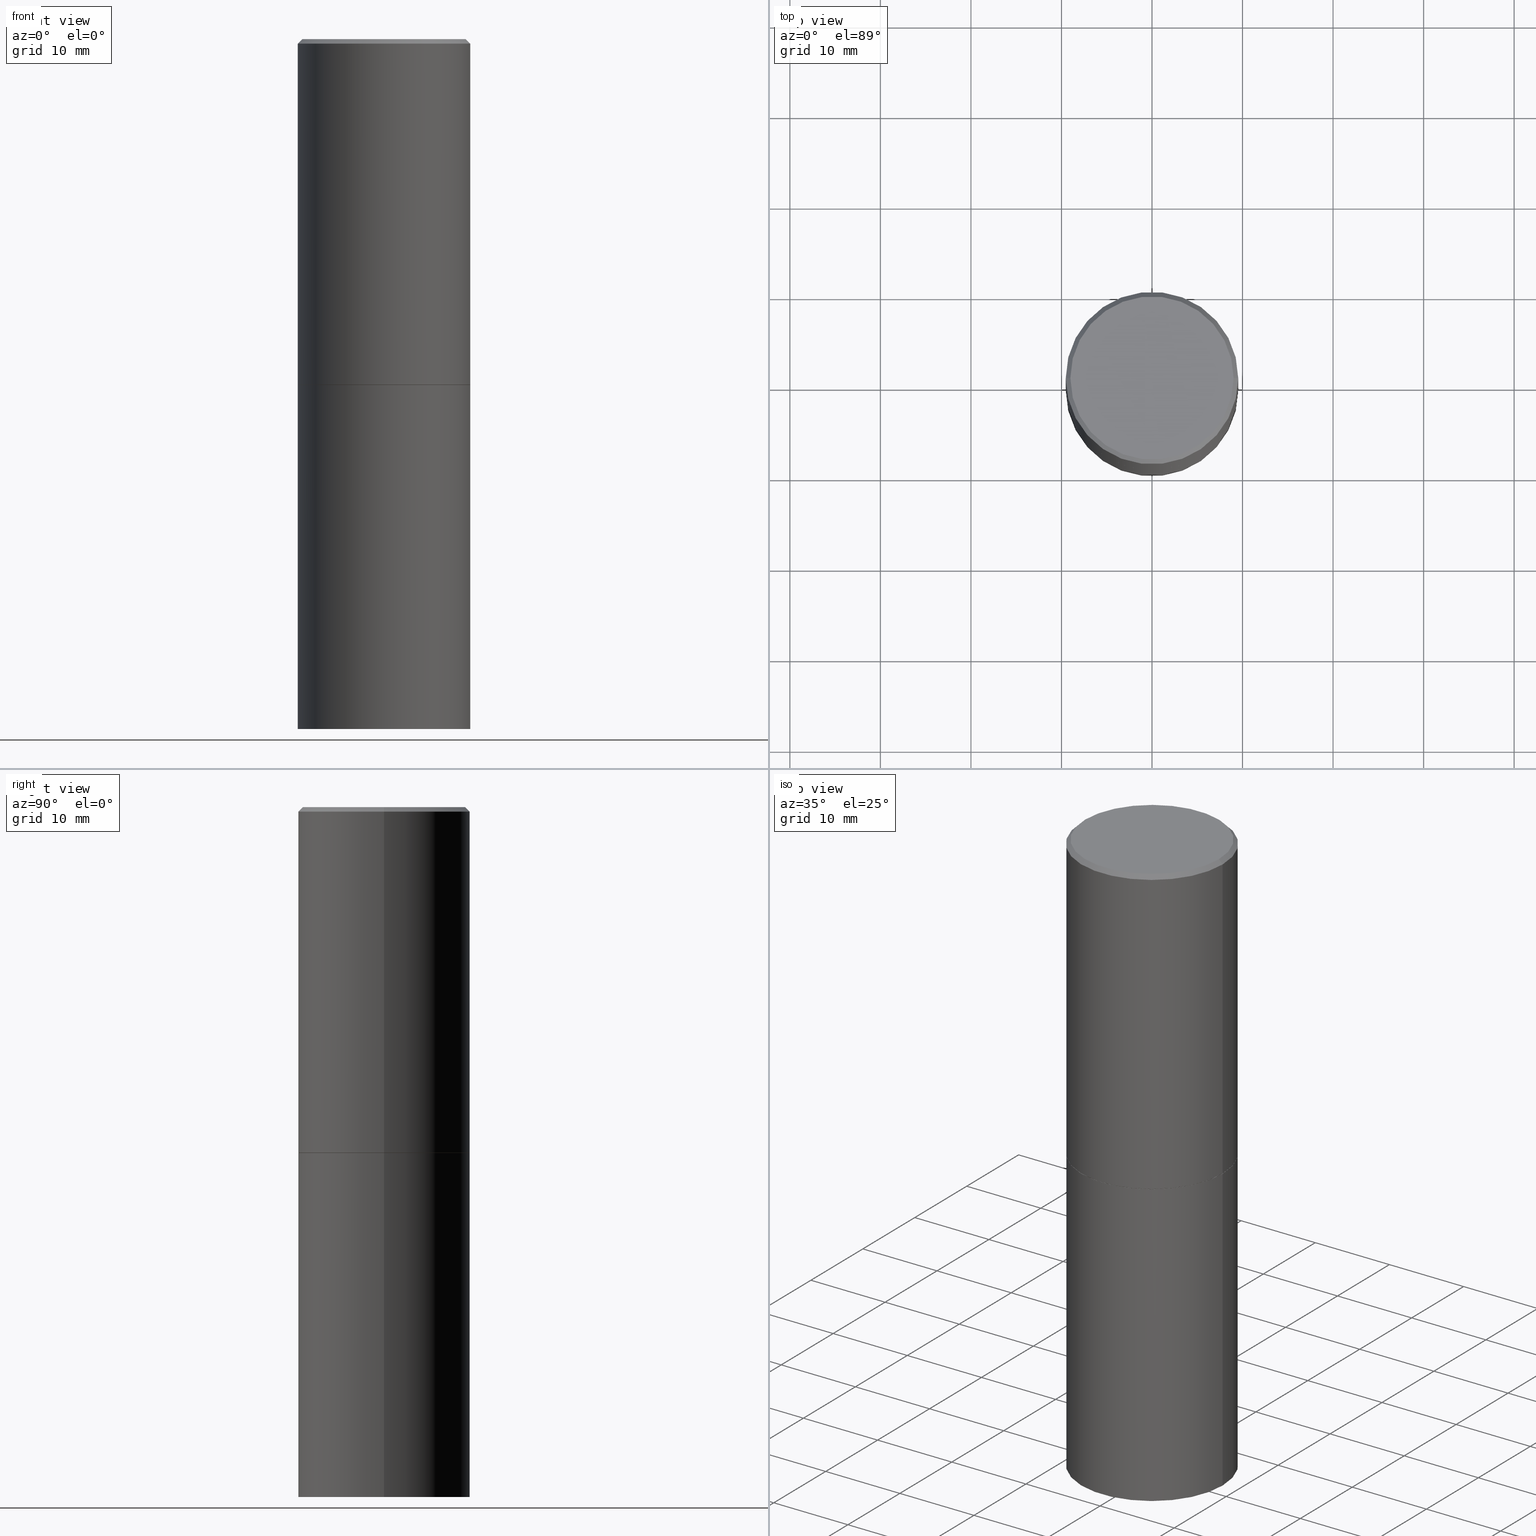
[diagram: canonical four-view strip — front | top / right | iso, engineering-drawing reading convention]
A machine part, canonical four-view strip (front | top / right | iso — engineering-drawing reading convention). The complete STEP part file that produces these views, byte-faithful:
ISO-10303-21;
HEADER;
FILE_DESCRIPTION (( 'STEP AP203' ),
    '1' );
FILE_NAME ('32682.STEP',
    '2022-04-27T15:47:13',
    ( '' ),
    ( '' ),
    'SwSTEP 2.0',
    'SolidWorks 2022',
    '' );
FILE_SCHEMA (( 'CONFIG_CONTROL_DESIGN' ));
ENDSEC;

DATA;
#1 = FACE_OUTER_BOUND ( 'NONE', #39, .T. ) ;
#2 = AXIS2_PLACEMENT_3D ( 'NONE', #12, #284, #256 ) ;
#3 = PRODUCT_RELATED_PRODUCT_CATEGORY ( 'detail', '', ( #66 ) ) ;
#4 = DIRECTION ( 'NONE',  ( -2.445468806185136597E-29, 3.491481338843145583E-15, 1.000000000000000000 ) ) ;
#5 = CALENDAR_DATE ( 2022, 27, 4 ) ;
#6 = DIRECTION ( 'NONE',  ( 1.000000000000000000, -6.982962677686266711E-15, 4.876176775795935793E-29 ) ) ;
#7 = VECTOR ( 'NONE', #297, 39.37007874015748143 ) ;
#8 = VERTEX_POINT ( 'NONE', #231 ) ;
#9 = EDGE_LOOP ( 'NONE', ( #262, #258, #325, #260 ) ) ;
#10 = DIRECTION ( 'NONE',  ( 1.000000000000000000, -6.982962677686266711E-15, 4.876176775795935793E-29 ) ) ;
#11 = PERSON_AND_ORGANIZATION ( #261, #51 ) ;
#12 = CARTESIAN_POINT ( 'NONE',  ( 2.618611004132387093E-15, 0.3749999999999947820, -1.503900000000001791 ) ) ;
#13 = AXIS2_PLACEMENT_3D ( 'NONE', #34, #295, #362 ) ;
#14 = LINE ( 'NONE', #278, #209 ) ;
#15 = DESIGN_CONTEXT ( 'detailed design', #351, 'design' ) ;
#16 = CARTESIAN_POINT ( 'NONE',  ( 0.000000000000000000, 0.000000000000000000, 0.000000000000000000 ) ) ;
#17 = LINE ( 'NONE', #343, #252 ) ;
#18 = CONICAL_SURFACE ( 'NONE', #37, 0.3739999999999999991, 0.7853981633974141952 ) ;
#19 = CC_DESIGN_APPROVAL ( #337, ( #221 ) ) ;
#20 = PERSON_AND_ORGANIZATION ( #261, #51 ) ;
#21 = DIRECTION ( 'NONE',  ( -2.445468806185136597E-29, 3.491481338843145583E-15, 1.000000000000000000 ) ) ;
#22 = ORIENTED_EDGE ( 'NONE', *, *, #144, .F. ) ;
#23 = ORIENTED_EDGE ( 'NONE', *, *, #108, .T. ) ;
#24 = CIRCLE ( 'NONE', #64, 0.3749999999999998335 ) ;
#25 = DIRECTION ( 'NONE',  ( -0.7071067811865467956, 2.468850131082249172E-15, -0.7071067811865482389 ) ) ;
#26 = ORIENTED_EDGE ( 'NONE', *, *, #350, .T. ) ;
#27 = DIRECTION ( 'NONE',  ( 1.000000000000000000, -6.982962677686266711E-15, 0.000000000000000000 ) ) ;
#28 = PRODUCT_DEFINITION ( 'UNKNOWN', '', #221, #15 ) ;
#29 = CARTESIAN_POINT ( 'NONE',  ( -0.3739999999999999991, -2.593408953743432793E-15, -1.503900000000000237 ) ) ;
#30 = FACE_OUTER_BOUND ( 'NONE', #344, .T. ) ;
#31 = CIRCLE ( 'NONE', #276, 0.3749999999999998335 ) ;
#32 = CC_DESIGN_SECURITY_CLASSIFICATION ( #124, ( #221 ) ) ;
#33 = CYLINDRICAL_SURFACE ( 'NONE', #327, 0.3749999999999999445 ) ;
#34 = CARTESIAN_POINT ( 'NONE',  ( -1.043851414335219820E-46, 1.490343170380447200E-32, 4.268512490100411279E-18 ) ) ;
#35 = CARTESIAN_POINT ( 'NONE',  ( 0.3750000000000019984, -1.304713076569377647E-14, -3.000000000000000444 ) ) ;
#36 = PERSON_AND_ORGANIZATION ( #261, #51 ) ;
#37 = AXIS2_PLACEMENT_3D ( 'NONE', #42, #101, #167 ) ;
#38 = DIRECTION ( 'NONE',  ( 1.000000000000000000, -6.982962677686266711E-15, 0.000000000000000000 ) ) ;
#39 = EDGE_LOOP ( 'NONE', ( #250, #225, #384 ) ) ;
#40 = DIRECTION ( 'NONE',  ( 1.000000000000000000, -6.982962677686265922E-15, 4.876176775795935793E-29 ) ) ;
#41 = EDGE_CURVE ( 'NONE', #355, #8, #198, .T. ) ;
#42 = CARTESIAN_POINT ( 'NONE',  ( 3.677740537621827962E-29, -5.250838785486207482E-15, -1.503900000000000237 ) ) ;
#43 = COORDINATED_UNIVERSAL_TIME_OFFSET ( 5, 0, .BEHIND. ) ;
#44 = VECTOR ( 'NONE', #137, 39.37007874015748143 ) ;
#45 = CYLINDRICAL_SURFACE ( 'NONE', #233, 0.3750000000000000555 ) ;
#46 = VERTEX_POINT ( 'NONE', #174 ) ;
#47 = EDGE_CURVE ( 'NONE', #369, #176, #366, .T. ) ;
#48 = EDGE_CURVE ( 'NONE', #176, #369, #245, .T. ) ;
#49 = CARTESIAN_POINT ( 'NONE',  ( 0.3750000000000000555, -2.618611004132350016E-15, 1.828566290923476203E-29 ) ) ;
#50 = CIRCLE ( 'NONE', #318, 0.3750000000000000555 ) ;
#51 = ORGANIZATION ( 'UNSPECIFIED', 'UNSPECIFIED', '' ) ;
#52 = ORIENTED_EDGE ( 'NONE', *, *, #235, .F. ) ;
#53 = CARTESIAN_POINT ( 'NONE',  ( 4.890937612370280165E-31, -6.982962677686301470E-17, -0.02000000000000003164 ) ) ;
#54 = CLOSED_SHELL ( 'NONE', ( #179, #328, #223, #247, #340, #172, #275, #67 ) ) ;
#55 = ORIENTED_EDGE ( 'NONE', *, *, #188, .T. ) ;
#56 = PRODUCT_DEFINITION_SHAPE ( 'NONE', 'NONE',  #28 ) ;
#57 = ORIENTED_EDGE ( 'NONE', *, *, #58, .F. ) ;
#58 = EDGE_CURVE ( 'NONE', #104, #389, #31, .T. ) ;
#59 = EDGE_LOOP ( 'NONE', ( #100, #358, #360, #55 ) ) ;
#60 = CARTESIAN_POINT ( 'NONE',  ( -0.3749999999999999445, 2.664535259100375303E-15, -1.844600658845589318E-29 ) ) ;
#61 = LINE ( 'NONE', #304, #189 ) ;
#62 = DIRECTION ( 'NONE',  ( -2.445468806185136597E-29, 3.491481338843145583E-15, 1.000000000000000000 ) ) ;
#63 = CARTESIAN_POINT ( 'NONE',  ( 3.677740537621827962E-29, -5.250838785486207482E-15, -1.503900000000000237 ) ) ;
#64 = AXIS2_PLACEMENT_3D ( 'NONE', #94, #390, #361 ) ;
#65 = DATE_TIME_ROLE ( 'classification_date' ) ;
#66 = PRODUCT ( '32682', '32682', '', ( #311 ) ) ;
#67 = ADVANCED_FACE ( 'NONE', ( #255 ), #227, .F. ) ;
#68 = CALENDAR_DATE ( 2022, 27, 4 ) ;
#69 = LOCAL_TIME ( 11, 47, 13.00000000000000000, #370 ) ;
#70 = CC_DESIGN_DATE_AND_TIME_ASSIGNMENT ( #335, #65, ( #124 ) ) ;
#71 = DIRECTION ( 'NONE',  ( 1.000000000000000000, -6.982962677686265922E-15, 4.876176775795935793E-29 ) ) ;
#72 = ORIENTED_EDGE ( 'NONE', *, *, #229, .T. ) ;
#73 = DIRECTION ( 'NONE',  ( -1.000000000000000000, 6.982962677686268288E-15, 0.000000000000000000 ) ) ;
#74 = PERSON_AND_ORGANIZATION_ROLE ( 'design_owner' ) ;
#75 = DIRECTION ( 'NONE',  ( 2.445468806185136597E-29, -3.491481338843145583E-15, -1.000000000000000000 ) ) ;
#76 = VECTOR ( 'NONE', #308, 39.37007874015748143 ) ;
#77 = FACE_OUTER_BOUND ( 'NONE', #120, .T. ) ;
#78 = DIRECTION ( 'NONE',  ( 2.438088387897960049E-29, -3.491481338843145188E-15, -1.000000000000000000 ) ) ;
#79 = ADVANCED_FACE ( 'NONE', ( #378 ), #382, .F. ) ;
#80 = DATE_AND_TIME ( #136, #69 ) ;
#81 = ORIENTED_EDGE ( 'NONE', *, *, #182, .F. ) ;
#82 = ORIENTED_EDGE ( 'NONE', *, *, #48, .T. ) ;
#83 = PERSON_AND_ORGANIZATION ( #261, #51 ) ;
#84 = DIRECTION ( 'NONE',  ( -2.445468806185136597E-29, 3.491481338843145583E-15, 1.000000000000000000 ) ) ;
#85 = AXIS2_PLACEMENT_3D ( 'NONE', #364, #298, #186 ) ;
#86 = ADVANCED_FACE ( 'NONE', ( #77 ), #45, .T. ) ;
#87 = ORIENTED_EDGE ( 'NONE', *, *, #155, .F. ) ;
#88 = EDGE_LOOP ( 'NONE', ( #52, #107 ) ) ;
#89 = DIRECTION ( 'NONE',  ( 2.445468806185136597E-29, -3.491481338843145583E-15, -1.000000000000000000 ) ) ;
#90 = VERTEX_POINT ( 'NONE', #254 ) ;
#91 = CARTESIAN_POINT ( 'NONE',  ( 3.677740537621827962E-29, -5.250838785486207482E-15, -1.503900000000000237 ) ) ;
#92 = CIRCLE ( 'NONE', #13, 0.3549999999999998157 ) ;
#93 = FACE_OUTER_BOUND ( 'NONE', #88, .T. ) ;
#94 = CARTESIAN_POINT ( 'NONE',  ( 4.890937612370280165E-31, -6.982962677686301470E-17, -0.02000000000000003164 ) ) ;
#95 = ADVANCED_FACE ( 'NONE', ( #165 ), #146, .F. ) ;
#96 =( NAMED_UNIT ( * ) PLANE_ANGLE_UNIT ( ) SI_UNIT ( $, .RADIAN. ) );
#97 = CONICAL_SURFACE ( 'NONE', #110, 0.3749999999999998335, 0.7853981633974472798 ) ;
#98 = LINE ( 'NONE', #246, #289 ) ;
#99 =( LENGTH_UNIT ( ) NAMED_UNIT ( * ) SI_UNIT ( $, .METRE. ) );
#100 = ORIENTED_EDGE ( 'NONE', *, *, #152, .F. ) ;
#101 = DIRECTION ( 'NONE',  ( -2.445468806185136597E-29, 3.491481338843145583E-15, 1.000000000000000000 ) ) ;
#102 = AXIS2_PLACEMENT_3D ( 'NONE', #380, #145, #196 ) ;
#103 =( GEOMETRIC_REPRESENTATION_CONTEXT ( 3 ) GLOBAL_UNCERTAINTY_ASSIGNED_CONTEXT ( ( #162 ) ) GLOBAL_UNIT_ASSIGNED_CONTEXT ( ( #273, #96, #274 ) ) REPRESENTATION_CONTEXT ( 'NONE', 'WORKASPACE' ) );
#104 = VERTEX_POINT ( 'NONE', #143 ) ;
#105 = DIRECTION ( 'NONE',  ( -2.445468806185136597E-29, 3.491481338843145583E-15, 1.000000000000000000 ) ) ;
#106 = APPLICATION_PROTOCOL_DEFINITION ( 'international standard', 'config_control_design', 1994, #313 ) ;
#107 = ORIENTED_EDGE ( 'NONE', *, *, #229, .F. ) ;
#108 = EDGE_CURVE ( 'NONE', #219, #90, #315, .T. ) ;
#109 = VECTOR ( 'NONE', #316, 39.37007874015748143 ) ;
#110 = AXIS2_PLACEMENT_3D ( 'NONE', #331, #89, #266 ) ;
#111 = DIRECTION ( 'NONE',  ( 0.000000000000000000, 0.000000000000000000, 1.000000000000000000 ) ) ;
#112 = CARTESIAN_POINT ( 'NONE',  ( 1.035986986933661899E-27, -1.479114852340251188E-13, -42.36353309080939766 ) ) ;
#113 = CALENDAR_DATE ( 2022, 27, 4 ) ;
#114 = EDGE_LOOP ( 'NONE', ( #87, #296, #22 ) ) ;
#115 = ORIENTED_EDGE ( 'NONE', *, *, #286, .F. ) ;
#116 = AXIS2_PLACEMENT_3D ( 'NONE', #91, #326, #154 ) ;
#117 = COORDINATED_UNIVERSAL_TIME_OFFSET ( 5, 0, .BEHIND. ) ;
#118 = DIRECTION ( 'NONE',  ( -2.445468806185136597E-29, 3.491481338843145583E-15, 1.000000000000000000 ) ) ;
#119 = MANIFOLD_SOLID_BREP ( 'Body-Move/Copy2[1]', #270 ) ;
#120 = EDGE_LOOP ( 'NONE', ( #379, #23, #156, #336 ) ) ;
#121 = LINE ( 'NONE', #125, #173 ) ;
#122 = AXIS2_PLACEMENT_3D ( 'NONE', #332, #62, #217 ) ;
#123 = EDGE_CURVE ( 'NONE', #199, #176, #17, .T. ) ;
#124 = SECURITY_CLASSIFICATION ( '', '', #204 ) ;
#125 = CARTESIAN_POINT ( 'NONE',  ( -0.3749999999999998335, 2.548781377355485929E-15, -0.02000000000000003164 ) ) ;
#126 = FACE_OUTER_BOUND ( 'NONE', #59, .T. ) ;
#127 = APPROVAL ( #183, 'UNSPECIFIED' ) ;
#128 = DIRECTION ( 'NONE',  ( -2.445468806185136877E-29, 3.491481338843145188E-15, 1.000000000000000000 ) ) ;
#129 = CONICAL_SURFACE ( 'NONE', #242, 0.3749999999999998335, 0.7853981633974472798 ) ;
#130 = CARTESIAN_POINT ( 'NONE',  ( 0.000000000000000000, 0.000000000000000000, 0.000000000000000000 ) ) ;
#131 = APPROVAL_STATUS ( 'not_yet_approved' ) ;
#132 = DIRECTION ( 'NONE',  ( -2.445468806185136597E-29, 3.491481338843145583E-15, 1.000000000000000000 ) ) ;
#133 = COORDINATED_UNIVERSAL_TIME_OFFSET ( 5, 0, .BEHIND. ) ;
#134 = CARTESIAN_POINT ( 'NONE',  ( 0.3749999999999998335, -2.642516375941186056E-15, -0.02000000000000003164 ) ) ;
#135 = ORIENTED_EDGE ( 'NONE', *, *, #108, .F. ) ;
#136 = CALENDAR_DATE ( 2022, 27, 4 ) ;
#137 = DIRECTION ( 'NONE',  ( 0.7071067811865467956, -7.319954787623254468E-15, -0.7071067811865482389 ) ) ;
#138 = CIRCLE ( 'NONE', #314, 0.3549999999999998157 ) ;
#139 = DATE_AND_TIME ( #226, #341 ) ;
#140 = EDGE_CURVE ( 'NONE', #8, #90, #356, .T. ) ;
#141 = PERSON_AND_ORGANIZATION ( #261, #51 ) ;
#142 = APPLICATION_PROTOCOL_DEFINITION ( 'international standard', 'config_control_design', 1994, #351 ) ;
#143 = CARTESIAN_POINT ( 'NONE',  ( 0.3749999999999998335, -2.642516375941186056E-15, -0.02000000000000003164 ) ) ;
#144 = EDGE_CURVE ( 'NONE', #355, #219, #385, .T. ) ;
#145 = DIRECTION ( 'NONE',  ( -2.445468806185136597E-29, 3.491481338843145583E-15, 1.000000000000000000 ) ) ;
#146 = CONICAL_SURFACE ( 'NONE', #263, 2255.510300424507022, 1.553343034274960344 ) ;
#147 = AXIS2_PLACEMENT_3D ( 'NONE', #349, #78, #283 ) ;
#148 = CC_DESIGN_PERSON_AND_ORGANIZATION_ASSIGNMENT ( #236, #386, ( #124 ) ) ;
#149 = DIRECTION ( 'NONE',  ( 1.000000000000000000, -6.982962677686264344E-15, 0.000000000000000000 ) ) ;
#150 = PERSON_AND_ORGANIZATION ( #261, #51 ) ;
#151 = ORIENTED_EDGE ( 'NONE', *, *, #123, .T. ) ;
#152 = EDGE_CURVE ( 'NONE', #232, #104, #310, .T. ) ;
#153 = EDGE_LOOP ( 'NONE', ( #306, #203, #374, #187 ) ) ;
#154 = DIRECTION ( 'NONE',  ( 1.000000000000000000, -6.982962677686265922E-15, 4.876176775795935793E-29 ) ) ;
#155 = EDGE_CURVE ( 'NONE', #279, #355, #14, .T. ) ;
#156 = ORIENTED_EDGE ( 'NONE', *, *, #140, .F. ) ;
#157 = DIRECTION ( 'NONE',  ( -0.7071067811865232589, 7.493145998870265808E-15, 0.7071067811865715536 ) ) ;
#158 = AXIS2_PLACEMENT_3D ( 'NONE', #224, #345, #169 ) ;
#159 = LOCAL_TIME ( 11, 47, 13.00000000000000000, #357 ) ;
#160 = CYLINDRICAL_SURFACE ( 'NONE', #373, 0.3749999999999999445 ) ;
#161 = CARTESIAN_POINT ( 'NONE',  ( -0.3749999999999998335, 2.548781377355485929E-15, -0.02000000000000003164 ) ) ;
#162 = UNCERTAINTY_MEASURE_WITH_UNIT (LENGTH_MEASURE( 1.000000000000000082E-05 ), #273, 'distance_accuracy_value', 'NONE');
#163 = CIRCLE ( 'NONE', #122, 0.3750000000000000555 ) ;
#164 = DIMENSIONAL_EXPONENTS ( 1.000000000000000000, 0.000000000000000000, 0.000000000000000000, 0.000000000000000000, 0.000000000000000000, 0.000000000000000000, 0.000000000000000000 ) ;
#165 = FACE_OUTER_BOUND ( 'NONE', #114, .T. ) ;
#166 = ORIENTED_EDGE ( 'NONE', *, *, #140, .T. ) ;
#167 = DIRECTION ( 'NONE',  ( 1.000000000000000000, -6.982962677686265133E-15, 0.000000000000000000 ) ) ;
#168 = ORIENTED_EDGE ( 'NONE', *, *, #371, .T. ) ;
#169 = DIRECTION ( 'NONE',  ( 1.000000000000000000, -6.982962677686265133E-15, 0.000000000000000000 ) ) ;
#170 = AXIS2_PLACEMENT_3D ( 'NONE', #291, #21, #149 ) ;
#171 = CARTESIAN_POINT ( 'NONE',  ( 0.000000000000000000, 0.000000000000000000, 0.000000000000000000 ) ) ;
#172 = ADVANCED_FACE ( 'NONE', ( #253 ), #18, .T. ) ;
#173 = VECTOR ( 'NONE', #25, 39.37007874015748143 ) ;
#174 = CARTESIAN_POINT ( 'NONE',  ( -0.3739999999999999991, -2.588110499395210391E-15, -1.503900000000000237 ) ) ;
#175 = DATE_AND_TIME ( #113, #159 ) ;
#176 = VERTEX_POINT ( 'NONE', #312 ) ;
#177 = DIRECTION ( 'NONE',  ( -1.000000000000000000, 6.982962677686265922E-15, 0.000000000000000000 ) ) ;
#178 = AXIS2_PLACEMENT_3D ( 'NONE', #63, #118, #330 ) ;
#179 = ADVANCED_FACE ( 'NONE', ( #280 ), #257, .T. ) ;
#180 = EDGE_LOOP ( 'NONE', ( #135, #352, #259, #329 ) ) ;
#181 = CARTESIAN_POINT ( 'NONE',  ( 7.321469753142454326E-29, -1.045005696430414481E-14, -2.993454350651921114 ) ) ;
#182 = EDGE_CURVE ( 'NONE', #369, #389, #282, .T. ) ;
#183 = APPROVAL_STATUS ( 'not_yet_approved' ) ;
#184 = CIRCLE ( 'NONE', #178, 0.3739999999999999991 ) ;
#185 = DIRECTION ( 'NONE',  ( -2.445468806185136597E-29, 3.491481338843145583E-15, 1.000000000000000000 ) ) ;
#186 = DIRECTION ( 'NONE',  ( 1.000000000000000000, -6.982962677686265133E-15, 0.000000000000000000 ) ) ;
#187 = ORIENTED_EDGE ( 'NONE', *, *, #207, .F. ) ;
#188 = EDGE_CURVE ( 'NONE', #389, #104, #24, .T. ) ;
#189 = VECTOR ( 'NONE', #388, 39.37007874015748143 ) ;
#190 = APPROVAL_DATE_TIME ( #339, #197 ) ;
#191 = LOCAL_TIME ( 11, 47, 13.00000000000000000, #133 ) ;
#192 = EDGE_CURVE ( 'NONE', #219, #355, #50, .T. ) ;
#193 = DIRECTION ( 'NONE',  ( -2.445468806185136597E-29, 3.491481338843145583E-15, 1.000000000000000000 ) ) ;
#194 = CARTESIAN_POINT ( 'NONE',  ( 7.336406418555409790E-29, -1.047444401652943635E-14, -3.000000000000000444 ) ) ;
#195 = ADVANCED_BREP_SHAPE_REPRESENTATION ( '32682', ( #119, #381, #363 ), #103 ) ;
#196 = DIRECTION ( 'NONE',  ( 1.000000000000000000, -6.982962677686266711E-15, 0.000000000000000000 ) ) ;
#197 = APPROVAL ( #131, 'UNSPECIFIED' ) ;
#198 = LINE ( 'NONE', #49, #109 ) ;
#199 = VERTEX_POINT ( 'NONE', #334 ) ;
#200 = AXIS2_PLACEMENT_3D ( 'NONE', #365, #193, #40 ) ;
#201 = APPROVAL_PERSON_ORGANIZATION ( #212, #127, #301 ) ;
#202 = EDGE_LOOP ( 'NONE', ( #81, #377, #26, #309 ) ) ;
#203 = ORIENTED_EDGE ( 'NONE', *, *, #152, .T. ) ;
#204 = SECURITY_CLASSIFICATION_LEVEL ( 'unclassified' ) ;
#205 = ORIENTED_EDGE ( 'NONE', *, *, #47, .F. ) ;
#206 = CARTESIAN_POINT ( 'NONE',  ( -0.3750000000000019984, -7.855833012397073715E-15, -3.000000000000000444 ) ) ;
#207 = EDGE_CURVE ( 'NONE', #353, #389, #121, .T. ) ;
#208 = CARTESIAN_POINT ( 'NONE',  ( 7.336406418555409790E-29, -1.047444401652943635E-14, -3.000000000000000444 ) ) ;
#209 = VECTOR ( 'NONE', #372, 39.37007874015748143 ) ;
#210 = CC_DESIGN_PERSON_AND_ORGANIZATION_ASSIGNMENT ( #11, #249, ( #28 ) ) ;
#211 = DIRECTION ( 'NONE',  ( 2.445468806185136597E-29, -3.491481338843145583E-15, -1.000000000000000000 ) ) ;
#212 = PERSON_AND_ORGANIZATION ( #261, #51 ) ;
#213 = CARTESIAN_POINT ( 'NONE',  ( -0.3750000000000000555, 5.946793638263273286E-18, -1.502900000000000347 ) ) ;
#214 = AXIS2_PLACEMENT_3D ( 'NONE', #194, #228, #38 ) ;
#215 = FACE_OUTER_BOUND ( 'NONE', #202, .T. ) ;
#216 = CARTESIAN_POINT ( 'NONE',  ( -1.043851414335219820E-46, 1.490343170380447200E-32, 4.268512490100411279E-18 ) ) ;
#217 = DIRECTION ( 'NONE',  ( 1.000000000000000000, -6.982962677686266711E-15, 0.000000000000000000 ) ) ;
#218 = APPROVAL_ROLE ( '' ) ;
#219 = VERTEX_POINT ( 'NONE', #206 ) ;
#220 = CIRCLE ( 'NONE', #85, 0.3739999999999999991 ) ;
#221 = PRODUCT_DEFINITION_FORMATION_WITH_SPECIFIED_SOURCE ( 'ANY', '', #66, .NOT_KNOWN. ) ;
#222 = DIRECTION ( 'NONE',  ( 0.7071067811865232589, -2.468850131082003836E-15, 0.7071067811865715536 ) ) ;
#223 = ADVANCED_FACE ( 'NONE', ( #240 ), #129, .T. ) ;
#224 = CARTESIAN_POINT ( 'NONE',  ( 3.677740537621827962E-29, -5.250838785486207482E-15, -1.503900000000000237 ) ) ;
#225 = ORIENTED_EDGE ( 'NONE', *, *, #155, .T. ) ;
#226 = CALENDAR_DATE ( 2022, 27, 4 ) ;
#227 = PLANE ( 'NONE',  #147 ) ;
#228 = DIRECTION ( 'NONE',  ( -2.445468806185136597E-29, 3.491481338843145583E-15, 1.000000000000000000 ) ) ;
#229 = EDGE_CURVE ( 'NONE', #46, #199, #184, .T. ) ;
#230 = APPROVAL_DATE_TIME ( #175, #337 ) ;
#231 = CARTESIAN_POINT ( 'NONE',  ( 0.3750000000000000555, -7.869449789618557499E-15, -1.503900000000000237 ) ) ;
#232 = VERTEX_POINT ( 'NONE', #359 ) ;
#233 = AXIS2_PLACEMENT_3D ( 'NONE', #171, #105, #71 ) ;
#234 = PERSON_AND_ORGANIZATION_ROLE ( 'design_supplier' ) ;
#235 = EDGE_CURVE ( 'NONE', #199, #46, #220, .T. ) ;
#236 = PERSON_AND_ORGANIZATION ( #261, #51 ) ;
#237 = ORIENTED_EDGE ( 'NONE', *, *, #350, .F. ) ;
#238 = PLANE ( 'NONE',  #116 ) ;
#239 = DIRECTION ( 'NONE',  ( 1.000000000000000000, 0.000000000000000000, 0.000000000000000000 ) ) ;
#240 = FACE_OUTER_BOUND ( 'NONE', #153, .T. ) ;
#241 = EDGE_CURVE ( 'NONE', #232, #353, #92, .T. ) ;
#242 = AXIS2_PLACEMENT_3D ( 'NONE', #53, #243, #177 ) ;
#243 = DIRECTION ( 'NONE',  ( 2.445468806185136597E-29, -3.491481338843145583E-15, -1.000000000000000000 ) ) ;
#244 = LINE ( 'NONE', #29, #348 ) ;
#245 = CIRCLE ( 'NONE', #281, 0.3750000000000000555 ) ;
#246 = CARTESIAN_POINT ( 'NONE',  ( 0.3749999999999999445, -2.618611004132349622E-15, 1.828566290923475642E-29 ) ) ;
#247 = ADVANCED_FACE ( 'NONE', ( #126 ), #97, .T. ) ;
#248 = CARTESIAN_POINT ( 'NONE',  ( -0.3549999999999998157, 2.513866563967054675E-15, 4.268512490082953109E-18 ) ) ;
#249 = PERSON_AND_ORGANIZATION_ROLE ( 'creator' ) ;
#250 = ORIENTED_EDGE ( 'NONE', *, *, #269, .F. ) ;
#251 = CARTESIAN_POINT ( 'NONE',  ( 4.890937612370280165E-31, -6.982962677686301470E-17, -0.02000000000000003164 ) ) ;
#252 = VECTOR ( 'NONE', #222, 39.37007874015748854 ) ;
#253 = FACE_OUTER_BOUND ( 'NONE', #294, .T. ) ;
#254 = CARTESIAN_POINT ( 'NONE',  ( -0.3750000000000000555, -5.198106141907447010E-15, -1.503900000000000237 ) ) ;
#255 = FACE_OUTER_BOUND ( 'NONE', #322, .T. ) ;
#256 = DIRECTION ( 'NONE',  ( -1.000000000000000000, 6.982962677686265922E-15, -4.876176775795935793E-29 ) ) ;
#257 = CONICAL_SURFACE ( 'NONE', #158, 0.3739999999999999991, 0.7853981633974141952 ) ;
#258 = ORIENTED_EDGE ( 'NONE', *, *, #286, .T. ) ;
#259 = ORIENTED_EDGE ( 'NONE', *, *, #41, .T. ) ;
#260 = ORIENTED_EDGE ( 'NONE', *, *, #123, .F. ) ;
#261 = PERSON ( 'UNSPECIFIED', 'UNSPECIFIED', 'UNSPECIFIED', ('UNSPECIFIED'), ('UNSPECIFIED'), ('UNSPECIFIED') ) ;
#262 = ORIENTED_EDGE ( 'NONE', *, *, #235, .T. ) ;
#263 = AXIS2_PLACEMENT_3D ( 'NONE', #112, #75, #73 ) ;
#264 = DATE_TIME_ROLE ( 'creation_date' ) ;
#265 = ORIENTED_EDGE ( 'NONE', *, *, #182, .T. ) ;
#266 = DIRECTION ( 'NONE',  ( -1.000000000000000000, 6.982962677686265922E-15, 0.000000000000000000 ) ) ;
#267 = CC_DESIGN_PERSON_AND_ORGANIZATION_ASSIGNMENT ( #83, #320, ( #221 ) ) ;
#268 = CARTESIAN_POINT ( 'NONE',  ( 1.035986986933661899E-27, -1.479114852340251188E-13, -42.36353309080939766 ) ) ;
#269 = EDGE_CURVE ( 'NONE', #279, #219, #61, .T. ) ;
#270 = CLOSED_SHELL ( 'NONE', ( #86, #288, #95, #367, #79 ) ) ;
#271 = CC_DESIGN_APPROVAL ( #197, ( #28 ) ) ;
#272 = CARTESIAN_POINT ( 'NONE',  ( 0.000000000000000000, 0.000000000000000000, 0.000000000000000000 ) ) ;
#273 =( CONVERSION_BASED_UNIT ( 'INCH', #338 ) LENGTH_UNIT ( ) NAMED_UNIT ( #164 ) );
#274 =( NAMED_UNIT ( * ) SI_UNIT ( $, .STERADIAN. ) SOLID_ANGLE_UNIT ( ) );
#275 = ADVANCED_FACE ( 'NONE', ( #93 ), #238, .F. ) ;
#276 = AXIS2_PLACEMENT_3D ( 'NONE', #251, #347, #285 ) ;
#277 = CC_DESIGN_PERSON_AND_ORGANIZATION_ASSIGNMENT ( #150, #234, ( #221 ) ) ;
#278 = CARTESIAN_POINT ( 'NONE',  ( 1.533039675937487591E-18, -1.045159000398000985E-14, -2.993454350651921114 ) ) ;
#279 = VERTEX_POINT ( 'NONE', #181 ) ;
#280 = FACE_OUTER_BOUND ( 'NONE', #9, .T. ) ;
#281 = AXIS2_PLACEMENT_3D ( 'NONE', #354, #84, #321 ) ;
#282 = LINE ( 'NONE', #60, #7 ) ;
#283 = DIRECTION ( 'NONE',  ( -1.000000000000000000, 6.982962677686265922E-15, -4.876176775795935793E-29 ) ) ;
#284 = DIRECTION ( 'NONE',  ( 2.438088387897960049E-29, -3.491481338843145188E-15, -1.000000000000000000 ) ) ;
#285 = DIRECTION ( 'NONE',  ( 1.000000000000000000, -6.982962677686265922E-15, 0.000000000000000000 ) ) ;
#286 = EDGE_CURVE ( 'NONE', #46, #369, #244, .T. ) ;
#287 = CARTESIAN_POINT ( 'NONE',  ( -0.3750000000000000555, 2.664535259100376091E-15, -1.844600658845589598E-29 ) ) ;
#288 = ADVANCED_FACE ( 'NONE', ( #1 ), #300, .F. ) ;
#289 = VECTOR ( 'NONE', #128, 39.37007874015748143 ) ;
#290 = CC_DESIGN_APPROVAL ( #127, ( #124 ) ) ;
#291 = CARTESIAN_POINT ( 'NONE',  ( 3.675295068815642359E-29, -5.247347304147363686E-15, -1.502900000000000347 ) ) ;
#292 = ORIENTED_EDGE ( 'NONE', *, *, #241, .T. ) ;
#293 = EDGE_LOOP ( 'NONE', ( #166, #168 ) ) ;
#294 = EDGE_LOOP ( 'NONE', ( #115, #72, #151, #205 ) ) ;
#295 = DIRECTION ( 'NONE',  ( -2.445468806185136597E-29, 3.491481338843145583E-15, 1.000000000000000000 ) ) ;
#296 = ORIENTED_EDGE ( 'NONE', *, *, #269, .T. ) ;
#297 = DIRECTION ( 'NONE',  ( -2.445468806185136877E-29, 3.491481338843145188E-15, 1.000000000000000000 ) ) ;
#298 = DIRECTION ( 'NONE',  ( -2.445468806185136597E-29, 3.491481338843145583E-15, 1.000000000000000000 ) ) ;
#299 = DIRECTION ( 'NONE',  ( -1.000000000000000000, 6.982962677686268288E-15, 0.000000000000000000 ) ) ;
#300 = CONICAL_SURFACE ( 'NONE', #307, 2255.510300424507022, 1.553343034274960344 ) ;
#301 = APPROVAL_ROLE ( '' ) ;
#302 = APPROVAL_PERSON_ORGANIZATION ( #36, #197, #218 ) ;
#303 = DIRECTION ( 'NONE',  ( 1.000000000000000000, -6.982962677686266711E-15, 4.876231632511990425E-29 ) ) ;
#304 = CARTESIAN_POINT ( 'NONE',  ( -1.533039675791079553E-18, -1.045159000398000985E-14, -2.993454350651921114 ) ) ;
#305 = CC_DESIGN_PERSON_AND_ORGANIZATION_ASSIGNMENT ( #141, #74, ( #66 ) ) ;
#306 = ORIENTED_EDGE ( 'NONE', *, *, #241, .F. ) ;
#307 = AXIS2_PLACEMENT_3D ( 'NONE', #268, #211, #299 ) ;
#308 = DIRECTION ( 'NONE',  ( -2.445468806185136877E-29, 3.491481338843145188E-15, 1.000000000000000000 ) ) ;
#309 = ORIENTED_EDGE ( 'NONE', *, *, #188, .F. ) ;
#310 = LINE ( 'NONE', #134, #44 ) ;
#311 = MECHANICAL_CONTEXT ( 'NONE', #313, 'mechanical' ) ;
#312 = CARTESIAN_POINT ( 'NONE',  ( 0.3750000000000000555, -7.865958308279712914E-15, -1.502900000000000347 ) ) ;
#313 = APPLICATION_CONTEXT ( 'configuration controlled 3d designs of mechanical parts and assemblies' ) ;
#314 = AXIS2_PLACEMENT_3D ( 'NONE', #216, #185, #303 ) ;
#315 = LINE ( 'NONE', #287, #76 ) ;
#316 = DIRECTION ( 'NONE',  ( -2.445468806185136877E-29, 3.491481338843145188E-15, 1.000000000000000000 ) ) ;
#317 = ORIENTED_EDGE ( 'NONE', *, *, #387, .T. ) ;
#318 = AXIS2_PLACEMENT_3D ( 'NONE', #208, #323, #27 ) ;
#319 = APPROVAL_PERSON_ORGANIZATION ( #20, #337, #383 ) ;
#320 = PERSON_AND_ORGANIZATION_ROLE ( 'creator' ) ;
#321 = DIRECTION ( 'NONE',  ( 1.000000000000000000, -6.982962677686264344E-15, 0.000000000000000000 ) ) ;
#322 = EDGE_LOOP ( 'NONE', ( #317, #292 ) ) ;
#323 = DIRECTION ( 'NONE',  ( -2.445468806185136597E-29, 3.491481338843145583E-15, 1.000000000000000000 ) ) ;
#324 = APPROVAL_STATUS ( 'not_yet_approved' ) ;
#325 = ORIENTED_EDGE ( 'NONE', *, *, #48, .F. ) ;
#326 = DIRECTION ( 'NONE',  ( -2.438088387897960049E-29, 3.491481338843145188E-15, 1.000000000000000000 ) ) ;
#327 = AXIS2_PLACEMENT_3D ( 'NONE', #130, #132, #6 ) ;
#328 = ADVANCED_FACE ( 'NONE', ( #30 ), #160, .T. ) ;
#329 = ORIENTED_EDGE ( 'NONE', *, *, #371, .F. ) ;
#330 = DIRECTION ( 'NONE',  ( 1.000000000000000000, -6.982962677686265133E-15, 0.000000000000000000 ) ) ;
#331 = CARTESIAN_POINT ( 'NONE',  ( 4.890937612370280165E-31, -6.982962677686301470E-17, -0.02000000000000003164 ) ) ;
#332 = CARTESIAN_POINT ( 'NONE',  ( 3.677740537621827962E-29, -5.250838785486207482E-15, -1.503900000000000237 ) ) ;
#333 = CC_DESIGN_DATE_AND_TIME_ASSIGNMENT ( #80, #264, ( #28 ) ) ;
#334 = CARTESIAN_POINT ( 'NONE',  ( 0.3739999999999999991, -7.862466826940871484E-15, -1.503900000000000237 ) ) ;
#335 = DATE_AND_TIME ( #5, #375 ) ;
#336 = ORIENTED_EDGE ( 'NONE', *, *, #41, .F. ) ;
#337 = APPROVAL ( #324, 'UNSPECIFIED' ) ;
#338 = LENGTH_MEASURE_WITH_UNIT ( LENGTH_MEASURE( 0.02539999999999999897 ), #99 );
#339 = DATE_AND_TIME ( #68, #191 ) ;
#340 = ADVANCED_FACE ( 'NONE', ( #215 ), #33, .T. ) ;
#341 = LOCAL_TIME ( 11, 47, 13.00000000000000000, #43 ) ;
#342 = CYLINDRICAL_SURFACE ( 'NONE', #200, 0.3750000000000000555 ) ;
#343 = CARTESIAN_POINT ( 'NONE',  ( 0.3739999999999999991, -7.862466826940871484E-15, -1.503900000000000237 ) ) ;
#344 = EDGE_LOOP ( 'NONE', ( #82, #265, #57, #237 ) ) ;
#345 = DIRECTION ( 'NONE',  ( -2.445468806185136597E-29, 3.491481338843145583E-15, 1.000000000000000000 ) ) ;
#346 = SHAPE_DEFINITION_REPRESENTATION ( #56, #195 ) ;
#347 = DIRECTION ( 'NONE',  ( -2.445468806185136597E-29, 3.491481338843145583E-15, 1.000000000000000000 ) ) ;
#348 = VECTOR ( 'NONE', #157, 39.37007874015748854 ) ;
#349 = CARTESIAN_POINT ( 'NONE',  ( 2.478951750578623420E-15, 0.3549999999999998157, -1.237341619044265835E-15 ) ) ;
#350 = EDGE_CURVE ( 'NONE', #176, #104, #98, .T. ) ;
#351 = APPLICATION_CONTEXT ( 'configuration controlled 3d designs of mechanical parts and assemblies' ) ;
#352 = ORIENTED_EDGE ( 'NONE', *, *, #192, .T. ) ;
#353 = VERTEX_POINT ( 'NONE', #248 ) ;
#354 = CARTESIAN_POINT ( 'NONE',  ( 3.675295068815642359E-29, -5.247347304147363686E-15, -1.502900000000000347 ) ) ;
#355 = VERTEX_POINT ( 'NONE', #35 ) ;
#356 = CIRCLE ( 'NONE', #102, 0.3750000000000000555 ) ;
#357 = COORDINATED_UNIVERSAL_TIME_OFFSET ( 5, 0, .BEHIND. ) ;
#358 = ORIENTED_EDGE ( 'NONE', *, *, #387, .F. ) ;
#359 = CARTESIAN_POINT ( 'NONE',  ( 0.3549999999999998157, -2.538996582575039076E-15, 4.268512490117958041E-18 ) ) ;
#360 = ORIENTED_EDGE ( 'NONE', *, *, #207, .T. ) ;
#361 = DIRECTION ( 'NONE',  ( 1.000000000000000000, -6.982962677686265922E-15, 0.000000000000000000 ) ) ;
#362 = DIRECTION ( 'NONE',  ( 1.000000000000000000, -6.982962677686266711E-15, 4.876231632511990425E-29 ) ) ;
#363 = AXIS2_PLACEMENT_3D ( 'NONE', #16, #111, #239 ) ;
#364 = CARTESIAN_POINT ( 'NONE',  ( 3.677740537621827962E-29, -5.250838785486207482E-15, -1.503900000000000237 ) ) ;
#365 = CARTESIAN_POINT ( 'NONE',  ( 0.000000000000000000, 0.000000000000000000, 0.000000000000000000 ) ) ;
#366 = CIRCLE ( 'NONE', #170, 0.3750000000000000555 ) ;
#367 = ADVANCED_FACE ( 'NONE', ( #368 ), #342, .T. ) ;
#368 = FACE_OUTER_BOUND ( 'NONE', #180, .T. ) ;
#369 = VERTEX_POINT ( 'NONE', #213 ) ;
#370 = COORDINATED_UNIVERSAL_TIME_OFFSET ( 5, 0, .BEHIND. ) ;
#371 = EDGE_CURVE ( 'NONE', #90, #8, #163, .T. ) ;
#372 = DIRECTION ( 'NONE',  ( 0.9998476951563912696, -6.920387862090559512E-15, -0.01745240643727649296 ) ) ;
#373 = AXIS2_PLACEMENT_3D ( 'NONE', #272, #4, #10 ) ;
#374 = ORIENTED_EDGE ( 'NONE', *, *, #58, .T. ) ;
#375 = LOCAL_TIME ( 11, 47, 13.00000000000000000, #117 ) ;
#376 = APPROVAL_DATE_TIME ( #139, #127 ) ;
#377 = ORIENTED_EDGE ( 'NONE', *, *, #47, .T. ) ;
#378 = FACE_OUTER_BOUND ( 'NONE', #293, .T. ) ;
#379 = ORIENTED_EDGE ( 'NONE', *, *, #144, .T. ) ;
#380 = CARTESIAN_POINT ( 'NONE',  ( 3.677740537621827962E-29, -5.250838785486207482E-15, -1.503900000000000237 ) ) ;
#381 = MANIFOLD_SOLID_BREP ( 'Body-Move/Copy2[2]', #54 ) ;
#382 = PLANE ( 'NONE',  #2 ) ;
#383 = APPROVAL_ROLE ( '' ) ;
#384 = ORIENTED_EDGE ( 'NONE', *, *, #192, .F. ) ;
#385 = CIRCLE ( 'NONE', #214, 0.3750000000000000555 ) ;
#386 = PERSON_AND_ORGANIZATION_ROLE ( 'classification_officer' ) ;
#387 = EDGE_CURVE ( 'NONE', #353, #232, #138, .T. ) ;
#388 = DIRECTION ( 'NONE',  ( -0.9998476951563912696, 6.920964387254060733E-15, -0.01745240643727649296 ) ) ;
#389 = VERTEX_POINT ( 'NONE', #161 ) ;
#390 = DIRECTION ( 'NONE',  ( -2.445468806185136597E-29, 3.491481338843145583E-15, 1.000000000000000000 ) ) ;
ENDSEC;
END-ISO-10303-21;
